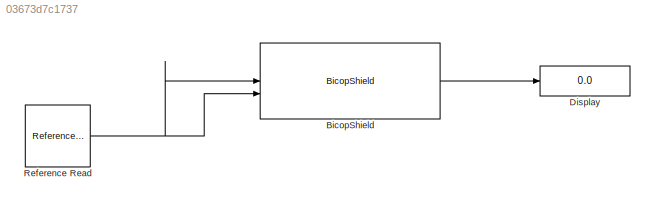
MODEL slx_03673d7c1737
KIND model
CONFIG AbsTol = auto
CONFIG EnableMultiTasking = on
CONFIG FixedStep = auto
CONFIG MaxStep = auto
CONFIG MinStep = auto
CONFIG RelTol = 1e-3
CONFIG SampleTimeConstraint = Unconstrained
CONFIG SolverName = FixedStepAuto
CONFIG StartTime = 0.0
CONFIG StopTime = 100.0
BLOCK [Reference] BicopShield  REF=BicopLibrary/BicopShield
  SourceBlock = BicopLibrary/BicopShield
BLOCK [Display] Display
  Decimation = 1
BLOCK [Reference] Reference Read  REF=BicopLibrary/Reference Read
  LibrarySourceBlock = MotoLibrary/Reference Read
  SourceBlock = BicopLibrary/Reference Read
LINE BicopShield:1 -> Display:1
NET Reference Read:1 -> BicopShield:1, BicopShield:2
note: NET lines group one-source signal fan-out (src -> all destinations, sorted); 1:1 wires keep LINE
